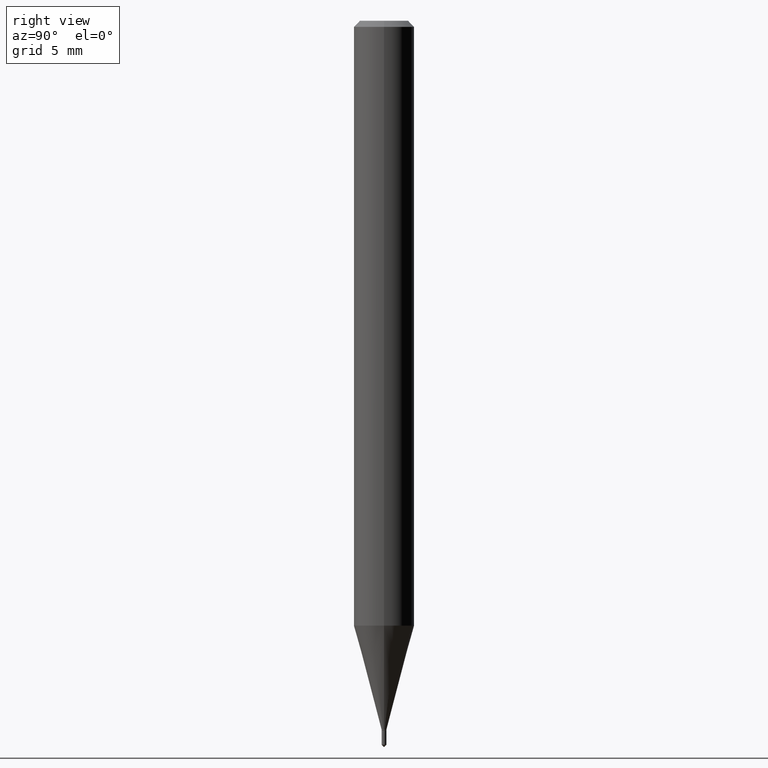
[diagram: clean part render]
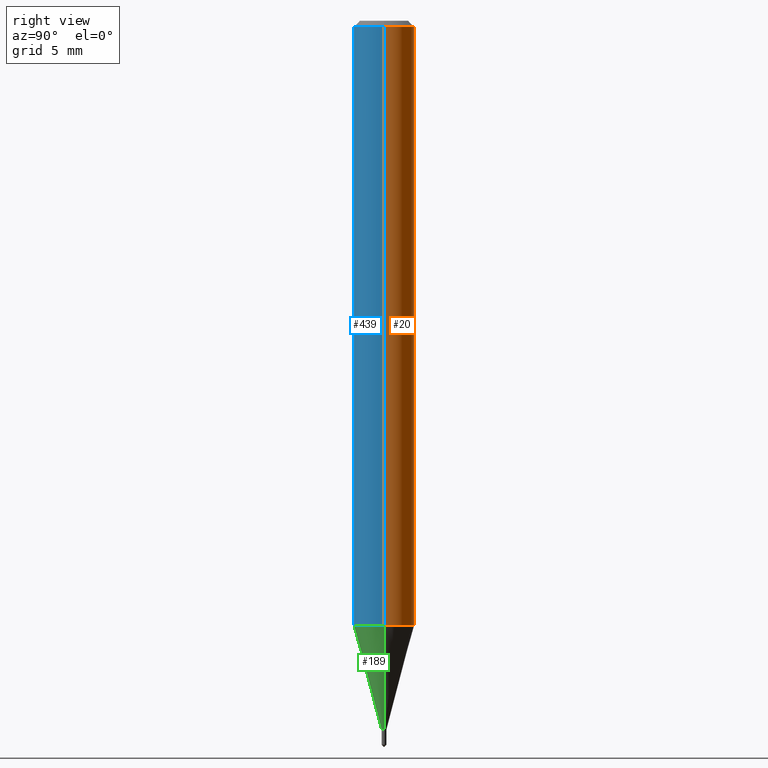
[diagram: same view with three faces highlighted in distinct colors, each labeled with its STEP entity id]
A machine part, right view with three faces highlighted in distinct colors.
Their STEP definitions:

[orange] entity #20 — the highlighted cylindrical surface (edge-blend (fillet) strip) has radius 1.5875 mm, axis along (-0, 0, 1).
#20 = ADVANCED_FACE ( 'NONE', ( #38 ), #371, .T. ) ;
#36 = CARTESIAN_POINT ( 'NONE',  ( 0.000000000000000000, 0.000000000000000000, 0.000000000000000000 ) ) ;
#38 = FACE_OUTER_BOUND ( 'NONE', #438, .T. ) ;
#57 = VERTEX_POINT ( 'NONE', #183 ) ;
#67 = DIRECTION ( 'NONE',  ( -2.445468806185136597E-29, 3.491481338843145583E-15, 1.000000000000000000 ) ) ;
#105 = DIRECTION ( 'NONE',  ( 1.000000000000000000, -6.982962677686267499E-15, 4.876176775795936353E-29 ) ) ;
#108 = VECTOR ( 'NONE', #426, 39.37007874015748143 ) ;
#118 = DIRECTION ( 'NONE',  ( 1.000000000000000000, -6.982962677686269077E-15, 0.000000000000000000 ) ) ;
#121 = DIRECTION ( 'NONE',  ( -2.445468806185136877E-29, 3.491481338843145188E-15, 1.000000000000000000 ) ) ;
#122 = CIRCLE ( 'NONE', #402, 0.06250000000000000000 ) ;
#125 = DIRECTION ( 'NONE',  ( -2.445468806185136597E-29, 3.491481338843145583E-15, 1.000000000000000000 ) ) ;
#131 = CARTESIAN_POINT ( 'NONE',  ( 3.056836007731441415E-31, -4.364351673553961684E-17, -0.01250000000000008396 ) ) ;
#150 = VECTOR ( 'NONE', #121, 39.37007874015748143 ) ;
#155 = CARTESIAN_POINT ( 'NONE',  ( -0.06250000000000013878, -3.916446548908011993E-15, -1.248907078564789996 ) ) ;
#177 = EDGE_CURVE ( 'NONE', #393, #214, #389, .T. ) ;
#183 = CARTESIAN_POINT ( 'NONE',  ( -0.06250000000000000000, -1.758000427896742892E-15, -0.01250000000000008396 ) ) ;
#198 = CARTESIAN_POINT ( 'NONE',  ( -0.06250000000000006939, 4.440892098500631092E-16, -3.074334431409319617E-30 ) ) ;
#204 = ORIENTED_EDGE ( 'NONE', *, *, #237, .T. ) ;
#214 = VERTEX_POINT ( 'NONE', #470 ) ;
#220 = DIRECTION ( 'NONE',  ( -2.445468806185136597E-29, 3.491481338843145583E-15, 1.000000000000000000 ) ) ;
#234 = CARTESIAN_POINT ( 'NONE',  ( 3.054163302454003505E-29, -4.360535758758074609E-15, -1.248907078564789996 ) ) ;
#237 = EDGE_CURVE ( 'NONE', #393, #475, #386, .T. ) ;
#238 = LINE ( 'NONE', #198, #108 ) ;
#246 = EDGE_CURVE ( 'NONE', #475, #57, #238, .T. ) ;
#282 = ORIENTED_EDGE ( 'NONE', *, *, #351, .F. ) ;
#286 = ORIENTED_EDGE ( 'NONE', *, *, #246, .T. ) ;
#295 = CARTESIAN_POINT ( 'NONE',  ( 0.06250000000000013878, -4.796970926113467068E-15, -1.248907078564789996 ) ) ;
#347 = CARTESIAN_POINT ( 'NONE',  ( 0.06250000000000006939, -4.364351673553922118E-16, 3.047610484872463724E-30 ) ) ;
#351 = EDGE_CURVE ( 'NONE', #214, #57, #122, .T. ) ;
#371 = CYLINDRICAL_SURFACE ( 'NONE', #414, 0.06250000000000006939 ) ;
#386 = CIRCLE ( 'NONE', #441, 0.06250000000000015266 ) ;
#389 = LINE ( 'NONE', #347, #150 ) ;
#393 = VERTEX_POINT ( 'NONE', #295 ) ;
#402 = AXIS2_PLACEMENT_3D ( 'NONE', #131, #67, #451 ) ;
#410 = ORIENTED_EDGE ( 'NONE', *, *, #177, .F. ) ;
#414 = AXIS2_PLACEMENT_3D ( 'NONE', #36, #220, #105 ) ;
#426 = DIRECTION ( 'NONE',  ( -2.445468806185136877E-29, 3.491481338843145188E-15, 1.000000000000000000 ) ) ;
#438 = EDGE_LOOP ( 'NONE', ( #204, #286, #282, #410 ) ) ;
#441 = AXIS2_PLACEMENT_3D ( 'NONE', #234, #125, #118 ) ;
#451 = DIRECTION ( 'NONE',  ( 1.000000000000000000, -6.982962677686266711E-15, 0.000000000000000000 ) ) ;
#470 = CARTESIAN_POINT ( 'NONE',  ( 0.06250000000000000000, -4.800786840909313294E-16, -0.01250000000000008396 ) ) ;
#475 = VERTEX_POINT ( 'NONE', #155 ) ;

[blue] entity #439 — the highlighted cylindrical surface (edge-blend (fillet) strip) has radius 1.5875 mm, axis along (-0, 0, 1).
#3 = DIRECTION ( 'NONE',  ( 1.000000000000000000, -6.982962677686267499E-15, 4.876176775795936353E-29 ) ) ;
#5 = CYLINDRICAL_SURFACE ( 'NONE', #311, 0.06250000000000006939 ) ;
#57 = VERTEX_POINT ( 'NONE', #183 ) ;
#65 = CARTESIAN_POINT ( 'NONE',  ( 3.056836007731441415E-31, -4.364351673553961684E-17, -0.01250000000000008396 ) ) ;
#74 = FACE_OUTER_BOUND ( 'NONE', #289, .T. ) ;
#106 = DIRECTION ( 'NONE',  ( -2.445468806185136597E-29, 3.491481338843145583E-15, 1.000000000000000000 ) ) ;
#108 = VECTOR ( 'NONE', #426, 39.37007874015748143 ) ;
#121 = DIRECTION ( 'NONE',  ( -2.445468806185136877E-29, 3.491481338843145188E-15, 1.000000000000000000 ) ) ;
#137 = ORIENTED_EDGE ( 'NONE', *, *, #447, .T. ) ;
#148 = ORIENTED_EDGE ( 'NONE', *, *, #177, .T. ) ;
#150 = VECTOR ( 'NONE', #121, 39.37007874015748143 ) ;
#155 = CARTESIAN_POINT ( 'NONE',  ( -0.06250000000000013878, -3.916446548908011993E-15, -1.248907078564789996 ) ) ;
#160 = AXIS2_PLACEMENT_3D ( 'NONE', #338, #221, #223 ) ;
#177 = EDGE_CURVE ( 'NONE', #393, #214, #389, .T. ) ;
#183 = CARTESIAN_POINT ( 'NONE',  ( -0.06250000000000000000, -1.758000427896742892E-15, -0.01250000000000008396 ) ) ;
#198 = CARTESIAN_POINT ( 'NONE',  ( -0.06250000000000006939, 4.440892098500631092E-16, -3.074334431409319617E-30 ) ) ;
#214 = VERTEX_POINT ( 'NONE', #470 ) ;
#215 = DIRECTION ( 'NONE',  ( -2.445468806185136597E-29, 3.491481338843145583E-15, 1.000000000000000000 ) ) ;
#221 = DIRECTION ( 'NONE',  ( -2.445468806185136597E-29, 3.491481338843145583E-15, 1.000000000000000000 ) ) ;
#223 = DIRECTION ( 'NONE',  ( 1.000000000000000000, -6.982962677686269077E-15, 0.000000000000000000 ) ) ;
#238 = LINE ( 'NONE', #198, #108 ) ;
#246 = EDGE_CURVE ( 'NONE', #475, #57, #238, .T. ) ;
#249 = AXIS2_PLACEMENT_3D ( 'NONE', #65, #215, #418 ) ;
#263 = CARTESIAN_POINT ( 'NONE',  ( 0.000000000000000000, 0.000000000000000000, 0.000000000000000000 ) ) ;
#289 = EDGE_LOOP ( 'NONE', ( #408, #137, #148, #325 ) ) ;
#295 = CARTESIAN_POINT ( 'NONE',  ( 0.06250000000000013878, -4.796970926113467068E-15, -1.248907078564789996 ) ) ;
#311 = AXIS2_PLACEMENT_3D ( 'NONE', #263, #106, #3 ) ;
#325 = ORIENTED_EDGE ( 'NONE', *, *, #430, .F. ) ;
#338 = CARTESIAN_POINT ( 'NONE',  ( 3.054163302454003505E-29, -4.360535758758074609E-15, -1.248907078564789996 ) ) ;
#347 = CARTESIAN_POINT ( 'NONE',  ( 0.06250000000000006939, -4.364351673553922118E-16, 3.047610484872463724E-30 ) ) ;
#359 = CIRCLE ( 'NONE', #249, 0.06250000000000000000 ) ;
#389 = LINE ( 'NONE', #347, #150 ) ;
#393 = VERTEX_POINT ( 'NONE', #295 ) ;
#408 = ORIENTED_EDGE ( 'NONE', *, *, #246, .F. ) ;
#411 = CIRCLE ( 'NONE', #160, 0.06250000000000015266 ) ;
#418 = DIRECTION ( 'NONE',  ( 1.000000000000000000, -6.982962677686266711E-15, 0.000000000000000000 ) ) ;
#426 = DIRECTION ( 'NONE',  ( -2.445468806185136877E-29, 3.491481338843145188E-15, 1.000000000000000000 ) ) ;
#430 = EDGE_CURVE ( 'NONE', #57, #214, #359, .T. ) ;
#439 = ADVANCED_FACE ( 'NONE', ( #74 ), #5, .T. ) ;
#447 = EDGE_CURVE ( 'NONE', #475, #393, #411, .T. ) ;
#470 = CARTESIAN_POINT ( 'NONE',  ( 0.06250000000000000000, -4.800786840909313294E-16, -0.01250000000000008396 ) ) ;
#475 = VERTEX_POINT ( 'NONE', #155 ) ;

[green] entity #189 — the highlighted conical surface has half-angle 15 deg.
#1 = CARTESIAN_POINT ( 'NONE',  ( 3.578943597851948324E-29, -5.109782939396945261E-15, -1.463500000000000467 ) ) ;
#15 = DIRECTION ( 'NONE',  ( 1.000000000000000000, -6.982962677686332975E-15, 0.000000000000000000 ) ) ;
#24 = CARTESIAN_POINT ( 'NONE',  ( 0.004999999999999999237, -5.144697752785376910E-15, -1.463500000000000467 ) ) ;
#42 = EDGE_CURVE ( 'NONE', #362, #390, #239, .T. ) ;
#51 = DIRECTION ( 'NONE',  ( 0.2588190451025213501, 1.565188264969621968E-15, 0.9659258262890682012 ) ) ;
#86 = FACE_OUTER_BOUND ( 'NONE', #176, .T. ) ;
#88 = LINE ( 'NONE', #235, #219 ) ;
#93 = CARTESIAN_POINT ( 'NONE',  ( -0.004999999999999999237, -5.076001543278361723E-15, -1.463500000000000467 ) ) ;
#110 = CONICAL_SURFACE ( 'NONE', #285, 0.004999999999999999237, 0.2617993877991500740 ) ;
#140 = LINE ( 'NONE', #252, #456 ) ;
#147 = DIRECTION ( 'NONE',  ( -2.445468806185136597E-29, 3.491481338843145583E-15, 1.000000000000000000 ) ) ;
#155 = CARTESIAN_POINT ( 'NONE',  ( -0.06250000000000013878, -3.916446548908011993E-15, -1.248907078564789996 ) ) ;
#160 = AXIS2_PLACEMENT_3D ( 'NONE', #338, #221, #223 ) ;
#166 = DIRECTION ( 'NONE',  ( -2.445468806185136597E-29, 3.491481338843145583E-15, 1.000000000000000000 ) ) ;
#176 = EDGE_LOOP ( 'NONE', ( #321, #353, #481, #244 ) ) ;
#189 = ADVANCED_FACE ( 'NONE', ( #86 ), #110, .T. ) ;
#219 = VECTOR ( 'NONE', #51, 39.37007874015747433 ) ;
#221 = DIRECTION ( 'NONE',  ( -2.445468806185136597E-29, 3.491481338843145583E-15, 1.000000000000000000 ) ) ;
#223 = DIRECTION ( 'NONE',  ( 1.000000000000000000, -6.982962677686269077E-15, 0.000000000000000000 ) ) ;
#235 = CARTESIAN_POINT ( 'NONE',  ( 0.004999999999999999237, -5.144697752785376910E-15, -1.463500000000000467 ) ) ;
#239 = CIRCLE ( 'NONE', #334, 0.004999999999999999237 ) ;
#241 = EDGE_CURVE ( 'NONE', #390, #393, #88, .T. ) ;
#244 = ORIENTED_EDGE ( 'NONE', *, *, #447, .F. ) ;
#252 = CARTESIAN_POINT ( 'NONE',  ( -0.004999999999999999237, -5.074255802608940220E-15, -1.463500000000000467 ) ) ;
#285 = AXIS2_PLACEMENT_3D ( 'NONE', #395, #166, #15 ) ;
#295 = CARTESIAN_POINT ( 'NONE',  ( 0.06250000000000013878, -4.796970926113467068E-15, -1.248907078564789996 ) ) ;
#299 = DIRECTION ( 'NONE',  ( 1.000000000000000000, -6.982962677686332975E-15, 0.000000000000000000 ) ) ;
#321 = ORIENTED_EDGE ( 'NONE', *, *, #422, .F. ) ;
#334 = AXIS2_PLACEMENT_3D ( 'NONE', #1, #147, #299 ) ;
#338 = CARTESIAN_POINT ( 'NONE',  ( 3.054163302454003505E-29, -4.360535758758074609E-15, -1.248907078564789996 ) ) ;
#353 = ORIENTED_EDGE ( 'NONE', *, *, #42, .T. ) ;
#362 = VERTEX_POINT ( 'NONE', #93 ) ;
#390 = VERTEX_POINT ( 'NONE', #24 ) ;
#393 = VERTEX_POINT ( 'NONE', #295 ) ;
#395 = CARTESIAN_POINT ( 'NONE',  ( 3.578943597851948324E-29, -5.109782939396945261E-15, -1.463500000000000467 ) ) ;
#407 = DIRECTION ( 'NONE',  ( -0.2588190451025213501, 5.211531920934551042E-15, 0.9659258262890682012 ) ) ;
#411 = CIRCLE ( 'NONE', #160, 0.06250000000000015266 ) ;
#422 = EDGE_CURVE ( 'NONE', #362, #475, #140, .T. ) ;
#447 = EDGE_CURVE ( 'NONE', #475, #393, #411, .T. ) ;
#456 = VECTOR ( 'NONE', #407, 39.37007874015747433 ) ;
#475 = VERTEX_POINT ( 'NONE', #155 ) ;
#481 = ORIENTED_EDGE ( 'NONE', *, *, #241, .T. ) ;